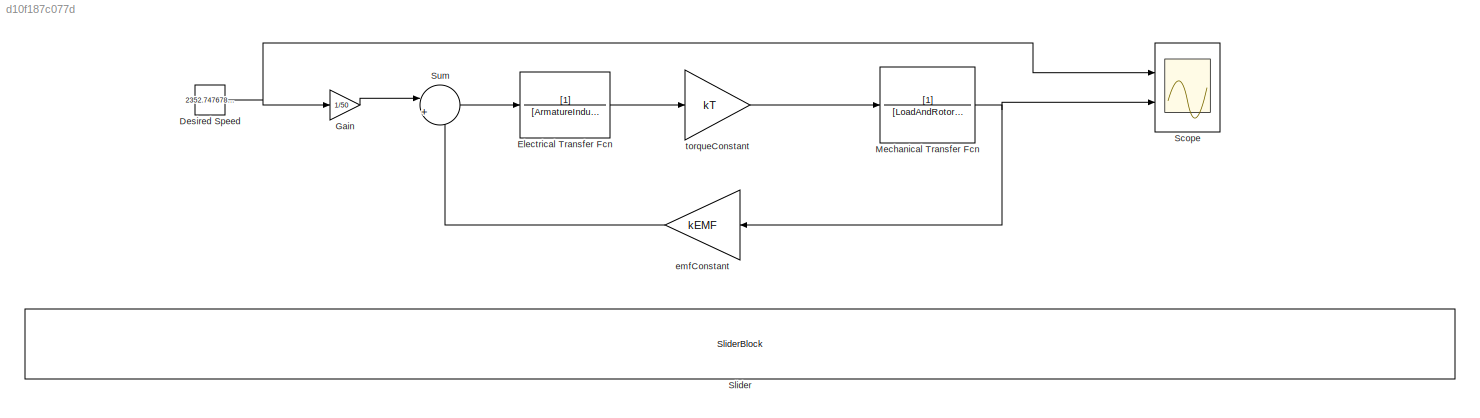
MODEL slx_d10f187c077d
KIND model
CONFIG AbsTol = auto
CONFIG EnableMultiTasking = off
CONFIG FixedStep = auto
CONFIG MaxStep = auto
CONFIG MinStep = auto
CONFIG RelTol = 1e-3
CONFIG SampleTimeConstraint = Unconstrained
CONFIG SolverName = VariableStepAuto
CONFIG StartTime = 0.0
CONFIG StopTime = inf
BLOCK [Constant] Desired Speed
  Value = 2352.747678018576
BLOCK [TransferFcn] Electrical Transfer Fcn
  Denominator = [ArmatureInductance ArmatureResistance]
BLOCK [Gain] Gain
  Gain = 1/50
BLOCK [TransferFcn] Mechanical Transfer Fcn
  Denominator = [LoadAndRotorInertia DampingConstant]
BLOCK [Scope] Scope
  Floating = off
  NumInputPorts = 2
  Ports = [2]
  ScopeSpecificationString = Simulink.scopes.TimeScopeBlockCfg('CurrentConfiguration', extmgr.ConfigurationSet(extmgr.Configuration('Core','General UI',true),extmgr.Configuration('Core','Source UI',true),extmgr.Configuration('Sources','WiredSimulink',true),extmgr.Configuration('Visuals','Time Domain',true,'SerializedDisplays',{struct('MinYLimReal','1036.18421','MaxYLimReal','2499.03251','YLabelReal','','MinYLimMag','1036.1842...<+1453ch>
BLOCK [SliderBlock] Slider
  ScaleMax = 21000
BLOCK [Sum] Sum
  Inputs = |+-
  Ports = [2, 1]
BLOCK [Gain] emfConstant
  Gain = kEMF
BLOCK [Gain] torqueConstant 
  Gain = kT
NET Desired Speed:1 -> Gain:1, Scope:1
LINE Electrical Transfer Fcn:1 -> torqueConstant :1
LINE Gain:1 -> Sum:1
NET Mechanical Transfer Fcn:1 -> Scope:2, emfConstant:1
LINE Sum:1 -> Electrical Transfer Fcn:1
LINE emfConstant:1 -> Sum:2
LINE torqueConstant :1 -> Mechanical Transfer Fcn:1
note: NET lines group one-source signal fan-out (src -> all destinations, sorted); 1:1 wires keep LINE
